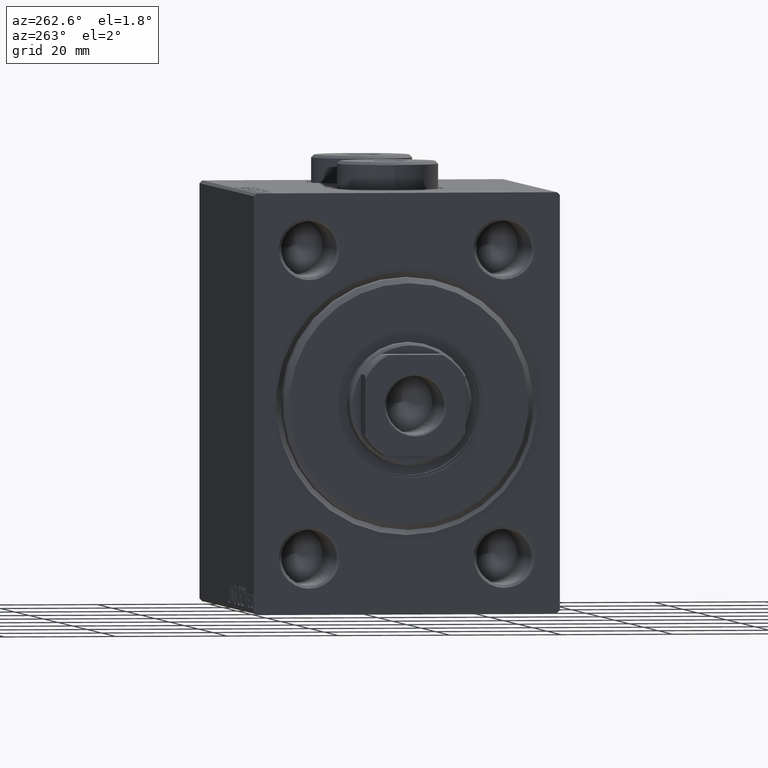
[diagram: clean part render]
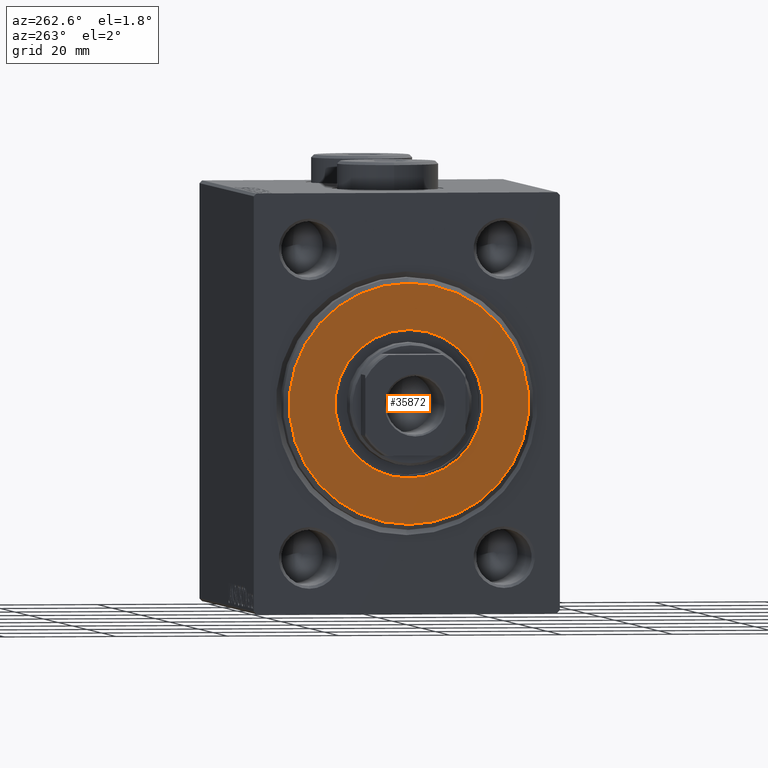
[diagram: same view with one face highlighted and labeled with its STEP entity id]
A machine part, auxiliary view. The second image highlights one B-rep face of the part: STEP entity #35872.
In plain terms, the highlighted planar face has unit normal (-1, 0, 0).
Its self-contained STEP definition (entity closure, byte-faithful):
#663 = CARTESIAN_POINT ( 'NONE',  ( 3.000000000000000000, 2.694222958124177598E-15, -21.50000000000000355 ) ) ;
#4497 = CARTESIAN_POINT ( 'NONE',  ( 3.000000000000000000, 0.000000000000000000, -13.25000000000000178 ) ) ;
#4838 = AXIS2_PLACEMENT_3D ( 'NONE', #26399, #40715, #5238 ) ;
#5238 = DIRECTION ( 'NONE',  ( 0.000000000000000000, 0.000000000000000000, -1.000000000000000000 ) ) ;
#5481 = VERTEX_POINT ( 'NONE', #44263 ) ;
#5570 = CARTESIAN_POINT ( 'NONE',  ( 3.000000000000000000, 0.000000000000000000, 0.000000000000000000 ) ) ;
#5719 = CARTESIAN_POINT ( 'NONE',  ( 3.000000000000000000, 0.000000000000000000, 0.000000000000000000 ) ) ;
#7483 = AXIS2_PLACEMENT_3D ( 'NONE', #13021, #17140, #34198 ) ;
#10274 = AXIS2_PLACEMENT_3D ( 'NONE', #5719, #19535, #36840 ) ;
#10484 = CARTESIAN_POINT ( 'NONE',  ( 3.000000000000000000, 0.000000000000000000, 0.000000000000000000 ) ) ;
#12357 = AXIS2_PLACEMENT_3D ( 'NONE', #5570, #23280, #26280 ) ;
#13021 = CARTESIAN_POINT ( 'NONE',  ( 3.000000000000000000, 0.000000000000000000, 0.000000000000000000 ) ) ;
#14008 = ORIENTED_EDGE ( 'NONE', *, *, #30915, .F. ) ;
#14764 = ORIENTED_EDGE ( 'NONE', *, *, #25985, .T. ) ;
#15525 = EDGE_CURVE ( 'NONE', #5481, #19037, #18036, .T. ) ;
#17140 = DIRECTION ( 'NONE',  ( 1.000000000000000000, -0.000000000000000000, 0.000000000000000000 ) ) ;
#17599 = DIRECTION ( 'NONE',  ( 0.000000000000000000, 0.000000000000000000, -1.000000000000000000 ) ) ;
#18036 = CIRCLE ( 'NONE', #4838, 13.25000000000000178 ) ;
#19037 = VERTEX_POINT ( 'NONE', #4497 ) ;
#19535 = DIRECTION ( 'NONE',  ( 1.000000000000000000, 0.000000000000000000, 0.000000000000000000 ) ) ;
#19865 = ORIENTED_EDGE ( 'NONE', *, *, #20777, .T. ) ;
#20270 = ORIENTED_EDGE ( 'NONE', *, *, #15525, .F. ) ;
#20777 = EDGE_CURVE ( 'NONE', #40315, #31847, #38047, .T. ) ;
#22032 = CIRCLE ( 'NONE', #10274, 13.25000000000000178 ) ;
#23280 = DIRECTION ( 'NONE',  ( 1.000000000000000000, -0.000000000000000000, 0.000000000000000000 ) ) ;
#24053 = AXIS2_PLACEMENT_3D ( 'NONE', #10484, #24735, #17599 ) ;
#24735 = DIRECTION ( 'NONE',  ( 1.000000000000000000, -0.000000000000000000, 0.000000000000000000 ) ) ;
#25676 = CARTESIAN_POINT ( 'NONE',  ( 3.000000000000000000, 0.000000000000000000, 21.50000000000000355 ) ) ;
#25985 = EDGE_CURVE ( 'NONE', #31847, #40315, #44746, .T. ) ;
#26280 = DIRECTION ( 'NONE',  ( 0.000000000000000000, 0.000000000000000000, -1.000000000000000000 ) ) ;
#26399 = CARTESIAN_POINT ( 'NONE',  ( 3.000000000000000000, 0.000000000000000000, 0.000000000000000000 ) ) ;
#26827 = FACE_OUTER_BOUND ( 'NONE', #39953, .T. ) ;
#30915 = EDGE_CURVE ( 'NONE', #19037, #5481, #22032, .T. ) ;
#31488 = EDGE_LOOP ( 'NONE', ( #14008, #20270 ) ) ;
#31847 = VERTEX_POINT ( 'NONE', #25676 ) ;
#34198 = DIRECTION ( 'NONE',  ( 0.000000000000000000, 0.000000000000000000, -1.000000000000000000 ) ) ;
#35872 = ADVANCED_FACE ( 'NONE', ( #26827, #44813 ), #40910, .T. ) ;
#36840 = DIRECTION ( 'NONE',  ( 0.000000000000000000, 0.000000000000000000, -1.000000000000000000 ) ) ;
#38047 = CIRCLE ( 'NONE', #24053, 21.50000000000000355 ) ;
#39953 = EDGE_LOOP ( 'NONE', ( #14764, #19865 ) ) ;
#40315 = VERTEX_POINT ( 'NONE', #663 ) ;
#40715 = DIRECTION ( 'NONE',  ( 1.000000000000000000, 0.000000000000000000, 0.000000000000000000 ) ) ;
#40910 = PLANE ( 'NONE',  #7483 ) ;
#44263 = CARTESIAN_POINT ( 'NONE',  ( 3.000000000000000000, 1.622657008870243277E-15, 13.25000000000000178 ) ) ;
#44746 = CIRCLE ( 'NONE', #12357, 21.50000000000000355 ) ;
#44813 = FACE_BOUND ( 'NONE', #31488, .T. ) ;